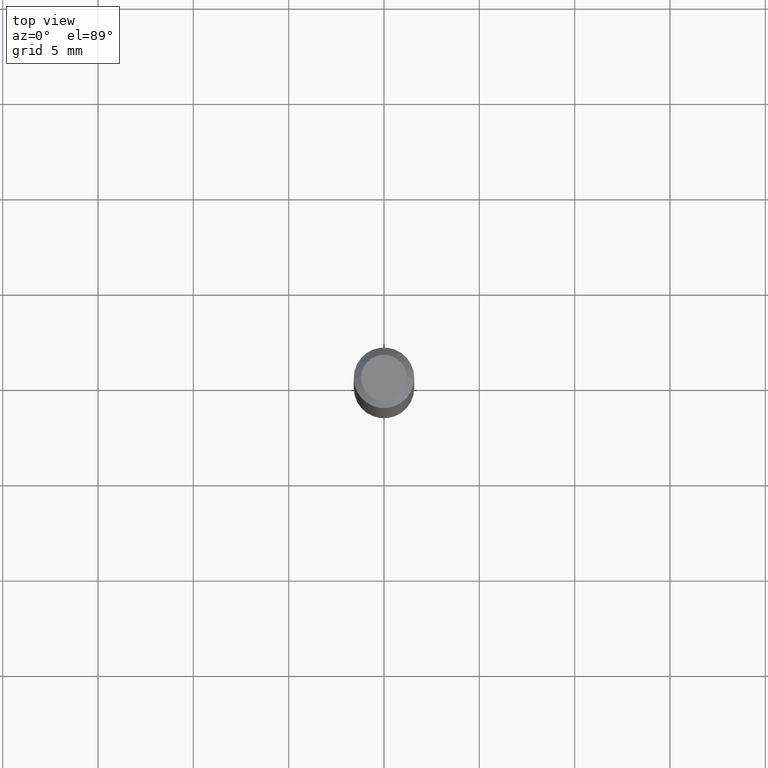
[diagram: clean part render]
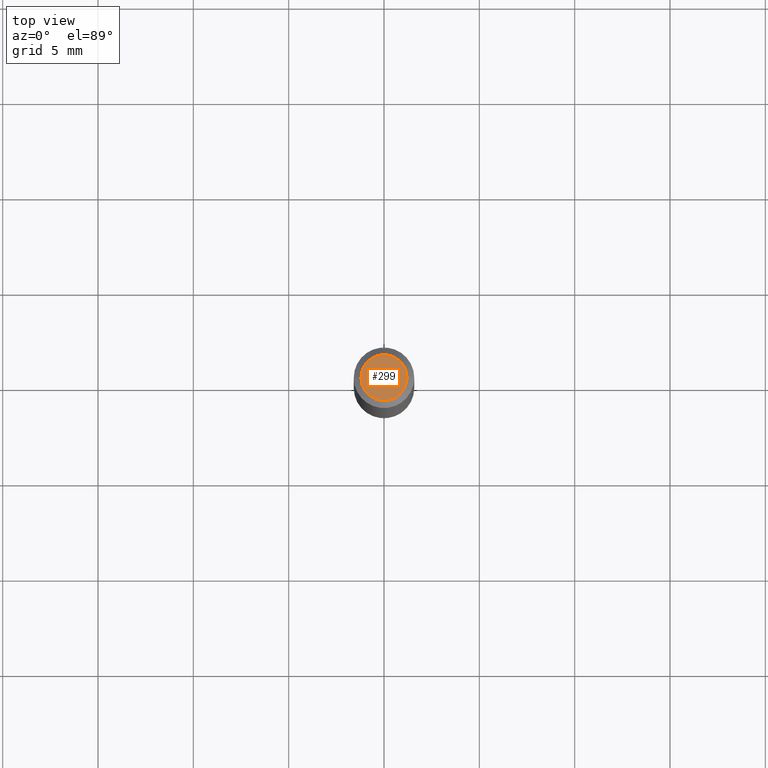
[diagram: same view with one face highlighted and labeled with its STEP entity id]
A machine part, top view. The second image highlights one B-rep face of the part: STEP entity #299.
In plain terms, the highlighted planar face has unit normal (0, -0, -1).
Its self-contained STEP definition (entity closure, byte-faithful):
#19 = CARTESIAN_POINT ( 'NONE',  ( 1.145470065593040868E-44, -1.635427672643458845E-30, -4.684051019975766066E-16 ) ) ;
#94 = CARTESIAN_POINT ( 'NONE',  ( 3.316907271900976096E-16, 0.04749999999999999362, -4.000479145938377490E-16 ) ) ;
#100 = CARTESIAN_POINT ( 'NONE',  ( -0.04749999999999999362, 3.578768372314202617E-16, -4.684051019975790718E-16 ) ) ;
#101 = ORIENTED_EDGE ( 'NONE', *, *, #201, .T. ) ;
#106 = CIRCLE ( 'NONE', #202, 0.04749999999999999362 ) ;
#117 = DIRECTION ( 'NONE',  ( 1.000000000000000000, -6.982962677686267499E-15, 4.852736867747366768E-29 ) ) ;
#124 = EDGE_LOOP ( 'NONE', ( #334, #101 ) ) ;
#135 = DIRECTION ( 'NONE',  ( -1.000000000000000000, 6.982962677686265922E-15, -4.876176775795935793E-29 ) ) ;
#138 = EDGE_CURVE ( 'NONE', #266, #360, #301, .T. ) ;
#170 = DIRECTION ( 'NONE',  ( -2.445468806185136597E-29, 3.491481338843145583E-15, 1.000000000000000000 ) ) ;
#201 = EDGE_CURVE ( 'NONE', #360, #266, #106, .T. ) ;
#202 = AXIS2_PLACEMENT_3D ( 'NONE', #308, #170, #207 ) ;
#207 = DIRECTION ( 'NONE',  ( 1.000000000000000000, -6.982962677686267499E-15, 4.852736867747366768E-29 ) ) ;
#208 = CARTESIAN_POINT ( 'NONE',  ( 0.04749999999999999362, -4.035134999187586019E-16, -4.684051019975741414E-16 ) ) ;
#266 = VERTEX_POINT ( 'NONE', #100 ) ;
#299 = ADVANCED_FACE ( 'NONE', ( #382 ), #381, .F. ) ;
#301 = CIRCLE ( 'NONE', #407, 0.04749999999999999362 ) ;
#308 = CARTESIAN_POINT ( 'NONE',  ( 1.145470065593040868E-44, -1.635427672643458845E-30, -4.684051019975766066E-16 ) ) ;
#334 = ORIENTED_EDGE ( 'NONE', *, *, #138, .T. ) ;
#360 = VERTEX_POINT ( 'NONE', #208 ) ;
#381 = PLANE ( 'NONE',  #424 ) ;
#382 = FACE_OUTER_BOUND ( 'NONE', #124, .T. ) ;
#407 = AXIS2_PLACEMENT_3D ( 'NONE', #19, #444, #117 ) ;
#424 = AXIS2_PLACEMENT_3D ( 'NONE', #94, #461, #135 ) ;
#444 = DIRECTION ( 'NONE',  ( -2.445468806185136597E-29, 3.491481338843145583E-15, 1.000000000000000000 ) ) ;
#461 = DIRECTION ( 'NONE',  ( 2.438088387897960049E-29, -3.491481338843145188E-15, -1.000000000000000000 ) ) ;